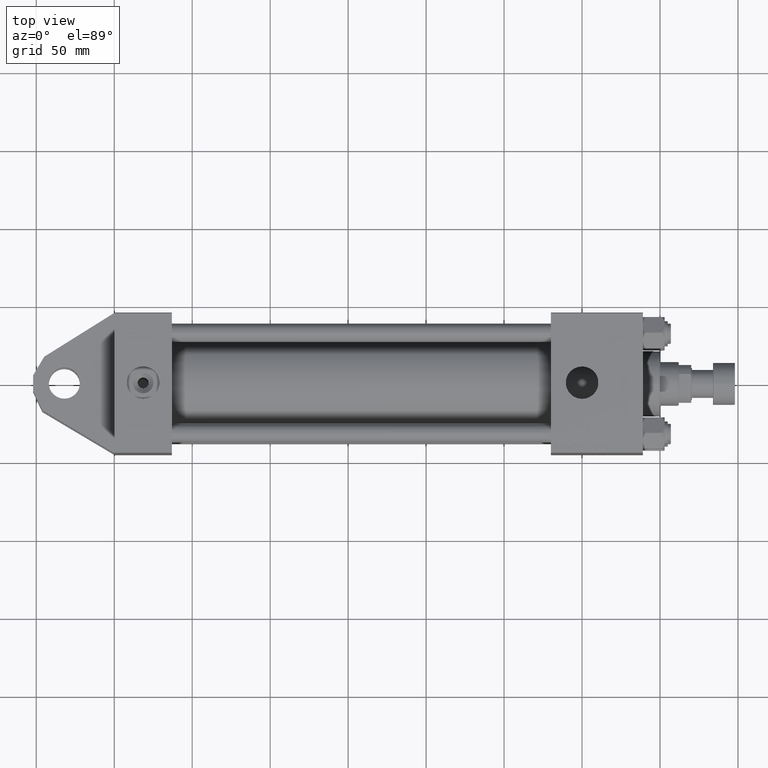
[diagram: clean part render]
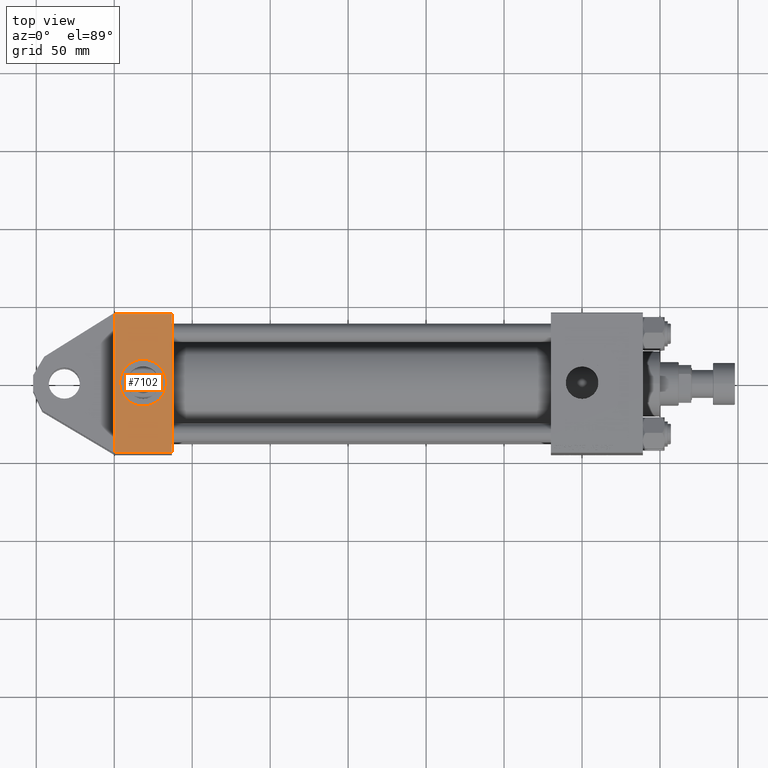
[diagram: same view with one face highlighted and labeled with its STEP entity id]
A machine part, top view. The second image highlights one B-rep face of the part: STEP entity #7102.
In plain terms, the highlighted planar face has unit normal (0, 0, -1).
Its self-contained STEP definition (entity closure, byte-faithful):
#1736 = VERTEX_POINT ( 'NONE', #37865 ) ;
#1795 = PLANE ( 'NONE',  #51683 ) ;
#2122 = DIRECTION ( 'NONE',  ( 1.000000000000000000, 0.000000000000000000, 0.000000000000000000 ) ) ;
#3941 = CIRCLE ( 'NONE', #50400, 15.00000000000000178 ) ;
#5541 = EDGE_CURVE ( 'NONE', #33737, #24581, #39117, .T. ) ;
#5557 = VERTEX_POINT ( 'NONE', #15590 ) ;
#6282 = DIRECTION ( 'NONE',  ( -0.000000000000000000, 1.000000000000000000, 7.709882115452478166E-17 ) ) ;
#6446 = DIRECTION ( 'NONE',  ( -1.000000000000000000, 0.000000000000000000, 0.000000000000000000 ) ) ;
#6702 = EDGE_CURVE ( 'NONE', #5557, #48667, #35680, .T. ) ;
#7102 = ADVANCED_FACE ( 'NONE', ( #41986, #13457 ), #1795, .F. ) ;
#8310 = DIRECTION ( 'NONE',  ( 0.000000000000000000, 0.000000000000000000, -1.000000000000000000 ) ) ;
#9537 = AXIS2_PLACEMENT_3D ( 'NONE', #20667, #17226, #12739 ) ;
#12739 = DIRECTION ( 'NONE',  ( 0.000000000000000000, 0.000000000000000000, -1.000000000000000000 ) ) ;
#13457 = FACE_OUTER_BOUND ( 'NONE', #33855, .T. ) ;
#14145 = LINE ( 'NONE', #26818, #31862 ) ;
#15590 = CARTESIAN_POINT ( 'NONE',  ( 18.50000000000000355, -45.00000000000000000, 14.99999999999999822 ) ) ;
#17074 = EDGE_CURVE ( 'NONE', #49582, #1736, #14145, .T. ) ;
#17226 = DIRECTION ( 'NONE',  ( 0.000000000000000000, -1.000000000000000000, -8.673617379884036705E-17 ) ) ;
#17265 = DIRECTION ( 'NONE',  ( 0.000000000000000000, 7.709882115452476934E-17, -1.000000000000000000 ) ) ;
#17925 = CARTESIAN_POINT ( 'NONE',  ( 37.00000000000000000, -45.00000000000000711, 45.00000000000000000 ) ) ;
#19277 = CARTESIAN_POINT ( 'NONE',  ( 37.00000000000000000, -45.00000000000000000, -44.49999999999998579 ) ) ;
#20667 = CARTESIAN_POINT ( 'NONE',  ( 18.50000000000000000, -45.00000000000000000, -3.469446951953614978E-15 ) ) ;
#21482 = LINE ( 'NONE', #29674, #44288 ) ;
#21832 = EDGE_CURVE ( 'NONE', #48667, #5557, #3941, .T. ) ;
#24581 = VERTEX_POINT ( 'NONE', #29286 ) ;
#25119 = ORIENTED_EDGE ( 'NONE', *, *, #36389, .F. ) ;
#25787 = ORIENTED_EDGE ( 'NONE', *, *, #5541, .T. ) ;
#26818 = CARTESIAN_POINT ( 'NONE',  ( 37.00000000000000000, -45.00000000000000711, 44.49999999999997158 ) ) ;
#27958 = ORIENTED_EDGE ( 'NONE', *, *, #47461, .T. ) ;
#29219 = CARTESIAN_POINT ( 'NONE',  ( 37.00000000000000000, -45.00000000000000711, 44.49999999999997158 ) ) ;
#29286 = CARTESIAN_POINT ( 'NONE',  ( 37.00000000000000000, -45.00000000000000000, -44.49999999999995737 ) ) ;
#29674 = CARTESIAN_POINT ( 'NONE',  ( 0.000000000000000000, -45.00000000000000711, 45.00000000000000000 ) ) ;
#31682 = CARTESIAN_POINT ( 'NONE',  ( 37.00000000000000000, -45.00000000000000711, 45.00000000000000000 ) ) ;
#31862 = VECTOR ( 'NONE', #6446, 1000.000000000000000 ) ;
#32183 = VECTOR ( 'NONE', #43823, 1000.000000000000000 ) ;
#32292 = VECTOR ( 'NONE', #2122, 1000.000000000000000 ) ;
#33031 = ORIENTED_EDGE ( 'NONE', *, *, #17074, .T. ) ;
#33737 = VERTEX_POINT ( 'NONE', #38535 ) ;
#33855 = EDGE_LOOP ( 'NONE', ( #27958, #25787, #25119, #33031 ) ) ;
#35680 = CIRCLE ( 'NONE', #9537, 15.00000000000000178 ) ;
#36389 = EDGE_CURVE ( 'NONE', #49582, #24581, #39866, .T. ) ;
#37865 = CARTESIAN_POINT ( 'NONE',  ( 0.000000000000000000, -45.00000000000000711, 44.49999999999997158 ) ) ;
#38535 = CARTESIAN_POINT ( 'NONE',  ( 0.000000000000000000, -45.00000000000000000, -44.49999999999995737 ) ) ;
#39117 = LINE ( 'NONE', #19277, #32292 ) ;
#39525 = CARTESIAN_POINT ( 'NONE',  ( 18.50000000000000000, -45.00000000000000000, -15.00000000000000533 ) ) ;
#39866 = LINE ( 'NONE', #31682, #32183 ) ;
#41986 = FACE_BOUND ( 'NONE', #52106, .T. ) ;
#42724 = ORIENTED_EDGE ( 'NONE', *, *, #21832, .F. ) ;
#43823 = DIRECTION ( 'NONE',  ( 0.000000000000000000, 7.709882115452476934E-17, -1.000000000000000000 ) ) ;
#44288 = VECTOR ( 'NONE', #17265, 1000.000000000000000 ) ;
#47461 = EDGE_CURVE ( 'NONE', #1736, #33737, #21482, .T. ) ;
#48197 = CARTESIAN_POINT ( 'NONE',  ( 18.50000000000000000, -45.00000000000000000, -3.469446951953614978E-15 ) ) ;
#48667 = VERTEX_POINT ( 'NONE', #39525 ) ;
#48991 = DIRECTION ( 'NONE',  ( 0.000000000000000000, -1.000000000000000000, -8.673617379884036705E-17 ) ) ;
#49582 = VERTEX_POINT ( 'NONE', #29219 ) ;
#49644 = DIRECTION ( 'NONE',  ( 0.000000000000000000, -7.709882115452478166E-17, 1.000000000000000000 ) ) ;
#50400 = AXIS2_PLACEMENT_3D ( 'NONE', #48197, #48991, #8310 ) ;
#50963 = ORIENTED_EDGE ( 'NONE', *, *, #6702, .F. ) ;
#51683 = AXIS2_PLACEMENT_3D ( 'NONE', #17925, #6282, #49644 ) ;
#52106 = EDGE_LOOP ( 'NONE', ( #42724, #50963 ) ) ;